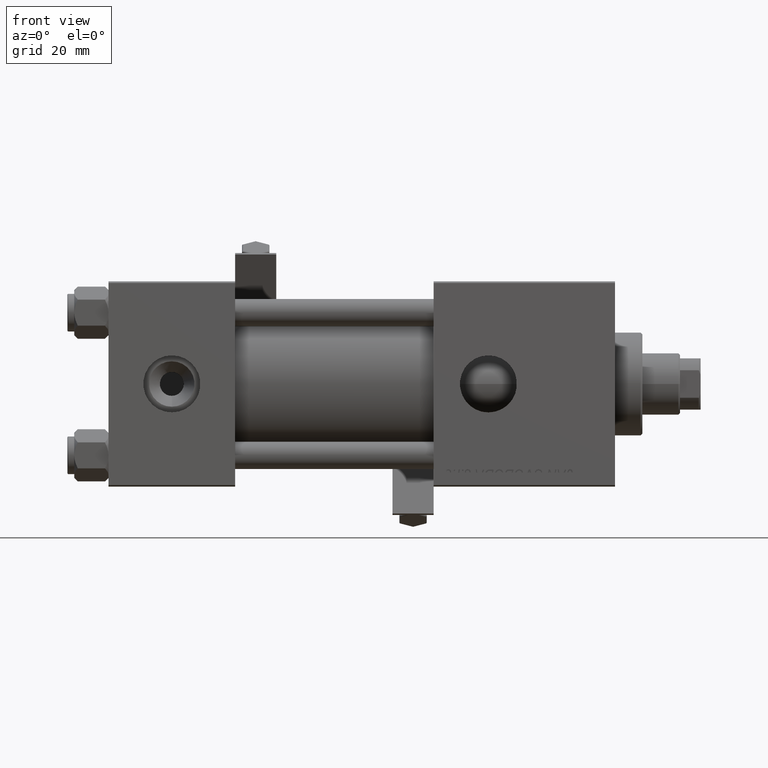
[diagram: clean part render]
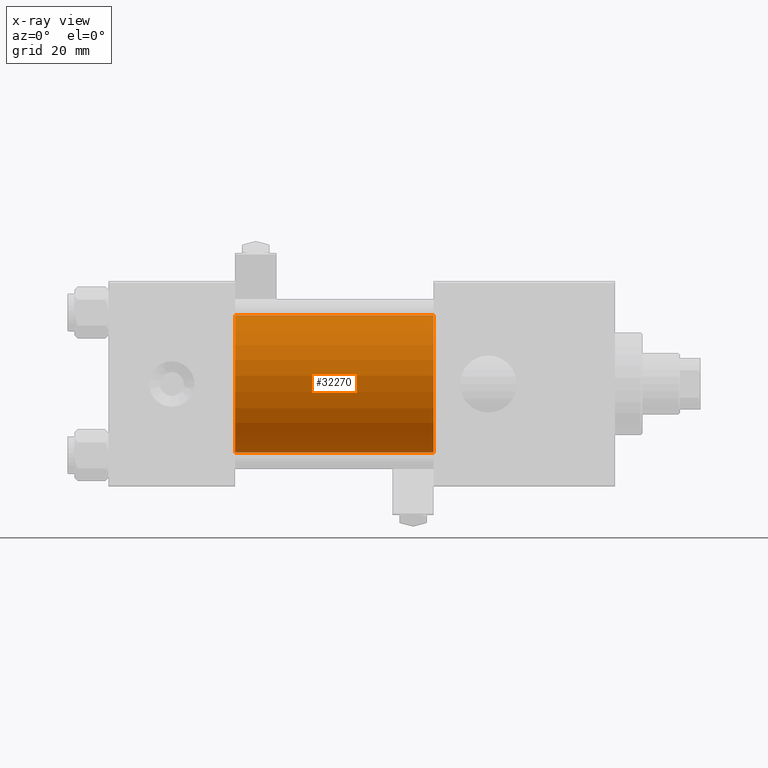
[diagram: x-ray — body ghosted, one internal face saturated and labeled with its STEP entity id]
A machine part, front view, then the same camera in x-ray: the body is ghosted and one INTERNAL B-rep face — a face not visible from any outside direction — is saturated and labeled: STEP entity #32270.
In plain terms, the highlighted cylindrical surface (partial cylindrical patch) has radius 20 mm, axis along (-1, -0, -0).
Its self-contained STEP definition (entity closure, byte-faithful):
#659 = DIRECTION ( 'NONE',  ( 1.000000000000000000, 0.000000000000000000, 0.000000000000000000 ) ) ;
#898 = VERTEX_POINT ( 'NONE', #10195 ) ;
#1954 = CARTESIAN_POINT ( 'NONE',  ( 95.00000000000000000, -2.602085213965210642E-15, 20.00000000000000000 ) ) ;
#2258 = VECTOR ( 'NONE', #6540, 1000.000000000000000 ) ;
#3435 = EDGE_CURVE ( 'NONE', #23457, #898, #23282, .T. ) ;
#3673 = DIRECTION ( 'NONE',  ( -1.000000000000000000, -0.000000000000000000, -0.000000000000000000 ) ) ;
#3820 = ORIENTED_EDGE ( 'NONE', *, *, #25446, .F. ) ;
#5949 = VECTOR ( 'NONE', #3673, 1000.000000000000000 ) ;
#6540 = DIRECTION ( 'NONE',  ( -1.000000000000000000, -0.000000000000000000, -0.000000000000000000 ) ) ;
#7404 = FACE_OUTER_BOUND ( 'NONE', #29034, .T. ) ;
#8507 = EDGE_CURVE ( 'NONE', #14739, #23457, #42003, .T. ) ;
#9312 = AXIS2_PLACEMENT_3D ( 'NONE', #42285, #34470, #22079 ) ;
#10057 = CARTESIAN_POINT ( 'NONE',  ( 95.00000000000000000, -1.527916156705046464E-16, -20.00000000000000000 ) ) ;
#10195 = CARTESIAN_POINT ( 'NONE',  ( 37.00000000000000000, -1.527916156705046464E-16, -20.00000000000000000 ) ) ;
#12521 = DIRECTION ( 'NONE',  ( 0.000000000000000000, 0.000000000000000000, -1.000000000000000000 ) ) ;
#13429 = AXIS2_PLACEMENT_3D ( 'NONE', #47312, #27630, #23586 ) ;
#14739 = VERTEX_POINT ( 'NONE', #1954 ) ;
#17582 = AXIS2_PLACEMENT_3D ( 'NONE', #20347, #659, #12521 ) ;
#17990 = VERTEX_POINT ( 'NONE', #27819 ) ;
#20347 = CARTESIAN_POINT ( 'NONE',  ( 37.00000000000000000, -2.602085213965210642E-15, 0.000000000000000000 ) ) ;
#22079 = DIRECTION ( 'NONE',  ( 0.000000000000000000, 0.000000000000000000, -1.000000000000000000 ) ) ;
#23282 = LINE ( 'NONE', #10057, #2258 ) ;
#23457 = VERTEX_POINT ( 'NONE', #31207 ) ;
#23586 = DIRECTION ( 'NONE',  ( 0.000000000000000000, 0.000000000000000000, 1.000000000000000000 ) ) ;
#25446 = EDGE_CURVE ( 'NONE', #17990, #898, #30478, .T. ) ;
#27630 = DIRECTION ( 'NONE',  ( -1.000000000000000000, -0.000000000000000000, -0.000000000000000000 ) ) ;
#27819 = CARTESIAN_POINT ( 'NONE',  ( 37.00000000000000000, -2.602085213965210642E-15, 20.00000000000000000 ) ) ;
#29034 = EDGE_LOOP ( 'NONE', ( #37600, #52089, #3820, #50219 ) ) ;
#30478 = CIRCLE ( 'NONE', #17582, 20.00000000000000000 ) ;
#31207 = CARTESIAN_POINT ( 'NONE',  ( 95.00000000000000000, -1.527916156705046464E-16, -20.00000000000000000 ) ) ;
#31679 = CYLINDRICAL_SURFACE ( 'NONE', #13429, 20.00000000000000000 ) ;
#32270 = ADVANCED_FACE ( 'NONE', ( #7404 ), #31679, .F. ) ;
#34470 = DIRECTION ( 'NONE',  ( 1.000000000000000000, 0.000000000000000000, 0.000000000000000000 ) ) ;
#36548 = LINE ( 'NONE', #48973, #5949 ) ;
#37600 = ORIENTED_EDGE ( 'NONE', *, *, #8507, .T. ) ;
#42003 = CIRCLE ( 'NONE', #9312, 20.00000000000000000 ) ;
#42285 = CARTESIAN_POINT ( 'NONE',  ( 95.00000000000000000, -2.602085213965210642E-15, 0.000000000000000000 ) ) ;
#47312 = CARTESIAN_POINT ( 'NONE',  ( 95.00000000000000000, -2.602085213965210642E-15, 0.000000000000000000 ) ) ;
#48973 = CARTESIAN_POINT ( 'NONE',  ( 95.00000000000000000, -2.602085213965210642E-15, 20.00000000000000000 ) ) ;
#50219 = ORIENTED_EDGE ( 'NONE', *, *, #52629, .F. ) ;
#52089 = ORIENTED_EDGE ( 'NONE', *, *, #3435, .T. ) ;
#52629 = EDGE_CURVE ( 'NONE', #14739, #17990, #36548, .T. ) ;